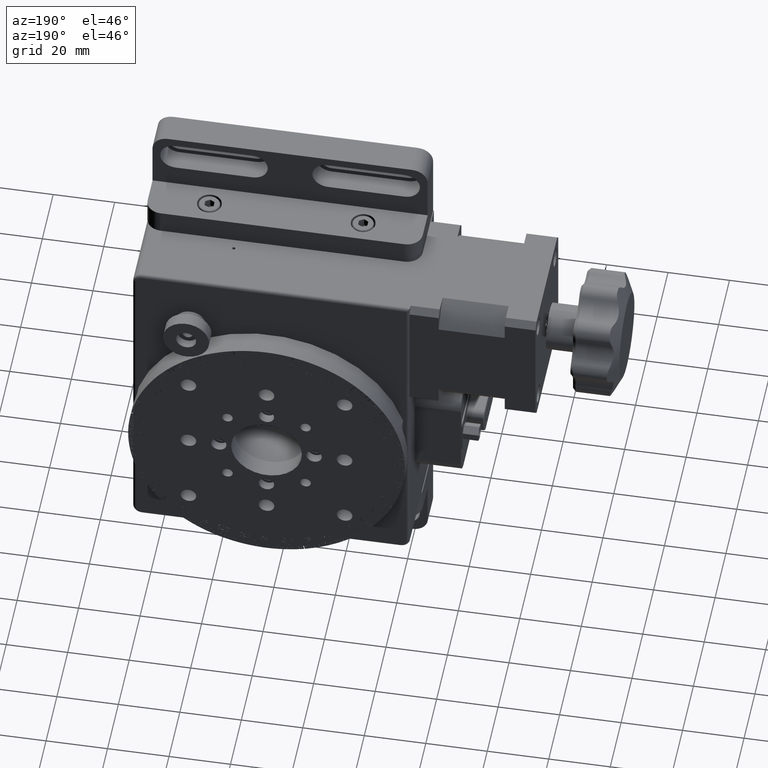
[diagram: clean part render]
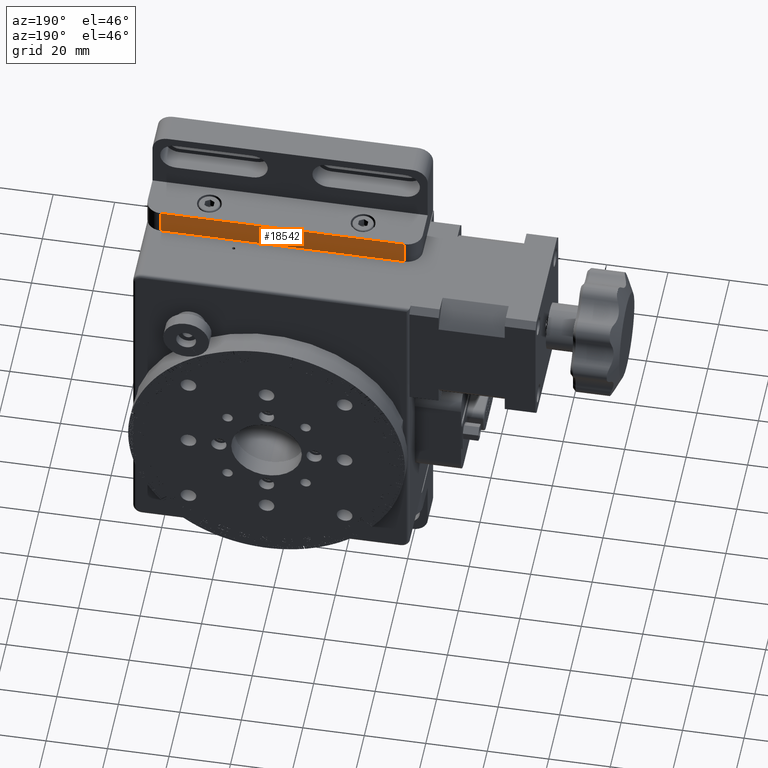
[diagram: same view with one face highlighted and labeled with its STEP entity id]
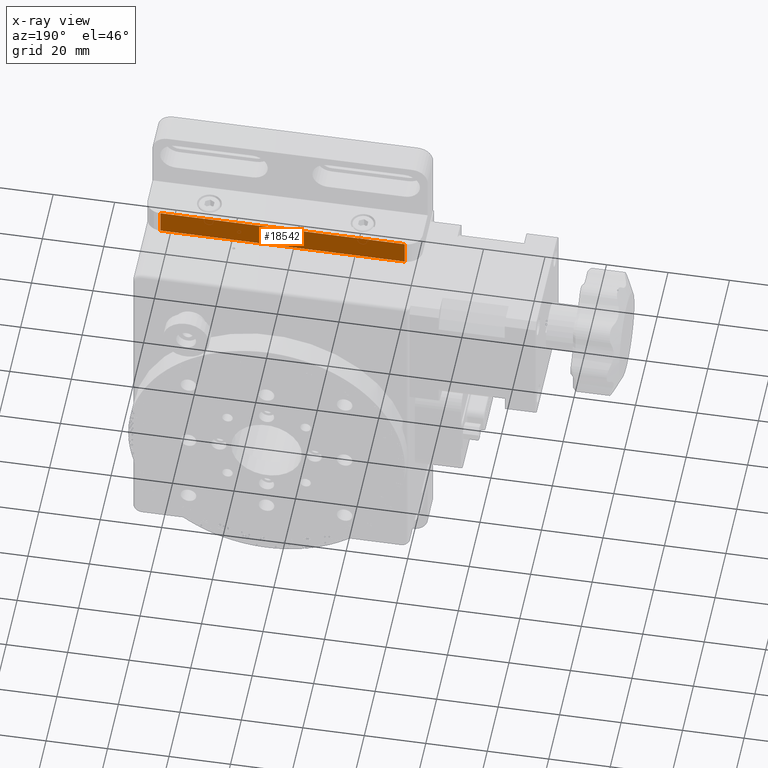
[diagram: x-ray of the same camera — body ghosted, the highlighted face saturated]
A machine part, auxiliary view. The second image highlights one B-rep face of the part: STEP entity #18542.
The next image is the same camera in x-ray: the body ghosted, the highlighted face saturated — about 0% of this face is hidden behind the body in this view.
In plain terms, the highlighted planar face has unit normal (0, -1, -0).
Its self-contained STEP definition (entity closure, byte-faithful):
#5013 = EDGE_CURVE ( 'NONE', #5030, #7867, #71600, .T. ) ;
#5030 = VERTEX_POINT ( 'NONE', #74098 ) ;
#7867 = VERTEX_POINT ( 'NONE', #9620 ) ;
#9544 = VERTEX_POINT ( 'NONE', #65187 ) ;
#9620 = CARTESIAN_POINT ( 'NONE',  ( -39.74999999999997900, 23.99999999999999600, 72.00000000000002800 ) ) ;
#13998 = EDGE_LOOP ( 'NONE', ( #56312, #108288, #44239, #61781 ) ) ;
#18013 = CARTESIAN_POINT ( 'NONE',  ( 44.74999999999999300, 24.00000000000000700, 64.00000000000001400 ) ) ;
#18271 = VECTOR ( 'NONE', #22899, 1000.000000000000000 ) ;
#18542 = ADVANCED_FACE ( 'NONE', ( #59895 ), #79718, .F. ) ;
#20838 = DIRECTION ( 'NONE',  ( 1.224606353822378200E-016, -1.000000000000000000, -5.338101260522120200E-017 ) ) ;
#22899 = DIRECTION ( 'NONE',  ( -1.000000000000000000, -1.224606353822378200E-016, 1.183475135621000300E-016 ) ) ;
#23998 = VECTOR ( 'NONE', #85404, 1000.000000000000000 ) ;
#24998 = EDGE_CURVE ( 'NONE', #9544, #5030, #66401, .T. ) ;
#31488 = CARTESIAN_POINT ( 'NONE',  ( -39.75000000000000700, 23.99999999999999600, 72.00000000000002800 ) ) ;
#36696 = AXIS2_PLACEMENT_3D ( 'NONE', #71559, #20838, #80077 ) ;
#37881 = LINE ( 'NONE', #73194, #80324 ) ;
#44239 = ORIENTED_EDGE ( 'NONE', *, *, #24998, .T. ) ;
#49080 = VECTOR ( 'NONE', #57094, 1000.000000000000000 ) ;
#52209 = CARTESIAN_POINT ( 'NONE',  ( 39.74999999999998600, 24.00000000000000700, 72.00000000000001400 ) ) ;
#54403 = EDGE_CURVE ( 'NONE', #97577, #9544, #37881, .T. ) ;
#56312 = ORIENTED_EDGE ( 'NONE', *, *, #98969, .F. ) ;
#56988 = CARTESIAN_POINT ( 'NONE',  ( 44.74999999999999300, 24.00000000000000700, 72.00000000000001400 ) ) ;
#57094 = DIRECTION ( 'NONE',  ( 1.183475135621000300E-016, -5.338101260522124500E-017, 1.000000000000000000 ) ) ;
#59895 = FACE_OUTER_BOUND ( 'NONE', #13998, .T. ) ;
#61781 = ORIENTED_EDGE ( 'NONE', *, *, #5013, .T. ) ;
#63327 = LINE ( 'NONE', #56988, #18271 ) ;
#65187 = CARTESIAN_POINT ( 'NONE',  ( 39.74999999999998600, 24.00000000000000700, 64.00000000000001400 ) ) ;
#66401 = LINE ( 'NONE', #18013, #23998 ) ;
#71559 = CARTESIAN_POINT ( 'NONE',  ( 44.74999999999999300, 24.00000000000000700, 72.00000000000001400 ) ) ;
#71600 = LINE ( 'NONE', #31488, #49080 ) ;
#73194 = CARTESIAN_POINT ( 'NONE',  ( 39.74999999999998600, 24.00000000000000700, 72.00000000000001400 ) ) ;
#74098 = CARTESIAN_POINT ( 'NONE',  ( -39.74999999999997900, 23.99999999999999600, 64.00000000000002800 ) ) ;
#79718 = PLANE ( 'NONE',  #36696 ) ;
#80077 = DIRECTION ( 'NONE',  ( -1.000000000000000000, -1.224606353822378200E-016, 1.183475135621000300E-016 ) ) ;
#80324 = VECTOR ( 'NONE', #81720, 1000.000000000000000 ) ;
#81720 = DIRECTION ( 'NONE',  ( -1.183475135621000300E-016, 5.338101260522124500E-017, -1.000000000000000000 ) ) ;
#85404 = DIRECTION ( 'NONE',  ( -1.000000000000000000, -1.224606353822378200E-016, 1.183475135621000300E-016 ) ) ;
#97577 = VERTEX_POINT ( 'NONE', #52209 ) ;
#98969 = EDGE_CURVE ( 'NONE', #97577, #7867, #63327, .T. ) ;
#108288 = ORIENTED_EDGE ( 'NONE', *, *, #54403, .T. ) ;